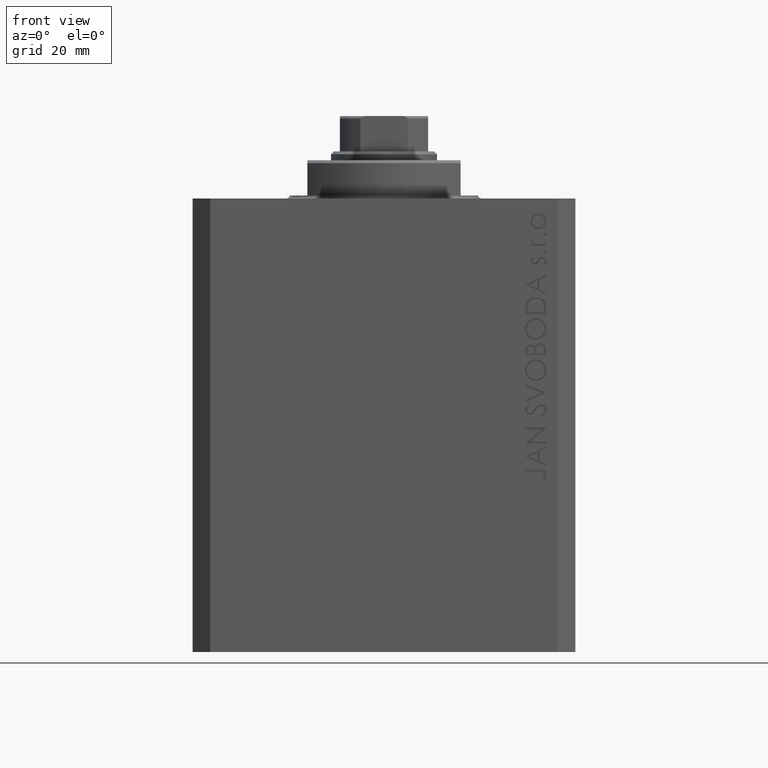
[diagram: clean part render]
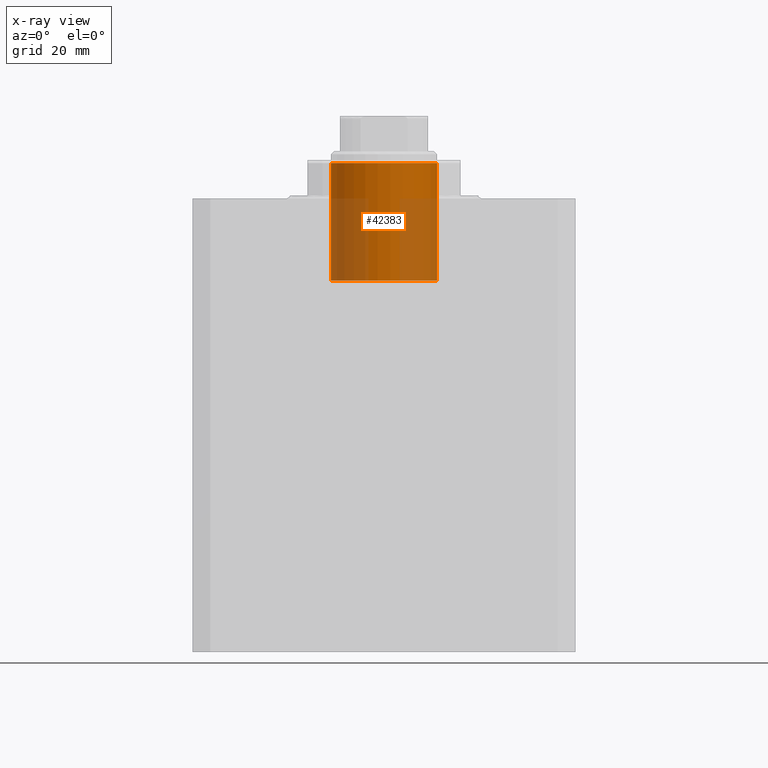
[diagram: x-ray — body ghosted, one internal face saturated and labeled with its STEP entity id]
A machine part, front view, then the same camera in x-ray: the body is ghosted and one INTERNAL B-rep face — a face not visible from any outside direction — is saturated and labeled: STEP entity #42383.
In plain terms, the highlighted cylindrical surface (partial cylindrical patch) has radius 9 mm, axis along (0, -0, 1).
Its self-contained STEP definition (entity closure, byte-faithful):
#519 = DIRECTION ( 'NONE',  ( -0.000000000000000000, -0.000000000000000000, -1.000000000000000000 ) ) ;
#634 = EDGE_LOOP ( 'NONE', ( #21353, #14299, #45559, #41121 ) ) ;
#1262 = EDGE_CURVE ( 'NONE', #22405, #37180, #4091, .T. ) ;
#1778 = DIRECTION ( 'NONE',  ( -0.000000000000000000, -0.000000000000000000, -1.000000000000000000 ) ) ;
#2582 = DIRECTION ( 'NONE',  ( 0.000000000000000000, 0.000000000000000000, -1.000000000000000000 ) ) ;
#3017 = LINE ( 'NONE', #10461, #29398 ) ;
#4091 = LINE ( 'NONE', #26685, #25683 ) ;
#4117 = EDGE_CURVE ( 'NONE', #37180, #47187, #20395, .T. ) ;
#6372 = CARTESIAN_POINT ( 'NONE',  ( 0.000000000000000000, 0.000000000000000000, -5.999999999999987566 ) ) ;
#6854 = DIRECTION ( 'NONE',  ( -1.000000000000000000, 0.000000000000000000, 0.000000000000000000 ) ) ;
#7077 = DIRECTION ( 'NONE',  ( 0.000000000000000000, 0.000000000000000000, -1.000000000000000000 ) ) ;
#7727 = CIRCLE ( 'NONE', #35311, 9.000000000000000000 ) ;
#10461 = CARTESIAN_POINT ( 'NONE',  ( -9.000000000000000000, 0.000000000000000000, 14.00000000000000178 ) ) ;
#11056 = VERTEX_POINT ( 'NONE', #30689 ) ;
#12909 = DIRECTION ( 'NONE',  ( -1.000000000000000000, 0.000000000000000000, 0.000000000000000000 ) ) ;
#14299 = ORIENTED_EDGE ( 'NONE', *, *, #1262, .T. ) ;
#14992 = CARTESIAN_POINT ( 'NONE',  ( 9.000000000000000000, 1.102182119232617714E-15, -5.999999999999987566 ) ) ;
#15463 = CARTESIAN_POINT ( 'NONE',  ( -9.000000000000000000, 0.000000000000000000, -5.999999999999987566 ) ) ;
#16412 = DIRECTION ( 'NONE',  ( -1.000000000000000000, 0.000000000000000000, 0.000000000000000000 ) ) ;
#16552 = AXIS2_PLACEMENT_3D ( 'NONE', #6372, #7077, #6854 ) ;
#19793 = CYLINDRICAL_SURFACE ( 'NONE', #23791, 9.000000000000000000 ) ;
#20395 = CIRCLE ( 'NONE', #16552, 9.000000000000000000 ) ;
#21353 = ORIENTED_EDGE ( 'NONE', *, *, #43529, .F. ) ;
#21730 = DIRECTION ( 'NONE',  ( -0.000000000000000000, -0.000000000000000000, -1.000000000000000000 ) ) ;
#22405 = VERTEX_POINT ( 'NONE', #24396 ) ;
#22509 = EDGE_CURVE ( 'NONE', #11056, #47187, #3017, .T. ) ;
#23791 = AXIS2_PLACEMENT_3D ( 'NONE', #27705, #1778, #16412 ) ;
#24396 = CARTESIAN_POINT ( 'NONE',  ( 9.000000000000000000, 1.102182119232617714E-15, 14.00000000000000178 ) ) ;
#25683 = VECTOR ( 'NONE', #519, 1000.000000000000000 ) ;
#26685 = CARTESIAN_POINT ( 'NONE',  ( 9.000000000000000000, 1.102182119232617714E-15, 14.00000000000000178 ) ) ;
#27705 = CARTESIAN_POINT ( 'NONE',  ( 0.000000000000000000, 0.000000000000000000, 14.00000000000000178 ) ) ;
#29398 = VECTOR ( 'NONE', #21730, 1000.000000000000000 ) ;
#30689 = CARTESIAN_POINT ( 'NONE',  ( -9.000000000000000000, 0.000000000000000000, 14.00000000000000178 ) ) ;
#31070 = FACE_OUTER_BOUND ( 'NONE', #634, .T. ) ;
#35311 = AXIS2_PLACEMENT_3D ( 'NONE', #41750, #2582, #12909 ) ;
#37180 = VERTEX_POINT ( 'NONE', #14992 ) ;
#41121 = ORIENTED_EDGE ( 'NONE', *, *, #22509, .F. ) ;
#41750 = CARTESIAN_POINT ( 'NONE',  ( 0.000000000000000000, 0.000000000000000000, 14.00000000000000178 ) ) ;
#42383 = ADVANCED_FACE ( 'NONE', ( #31070 ), #19793, .F. ) ;
#43529 = EDGE_CURVE ( 'NONE', #22405, #11056, #7727, .T. ) ;
#45559 = ORIENTED_EDGE ( 'NONE', *, *, #4117, .T. ) ;
#47187 = VERTEX_POINT ( 'NONE', #15463 ) ;